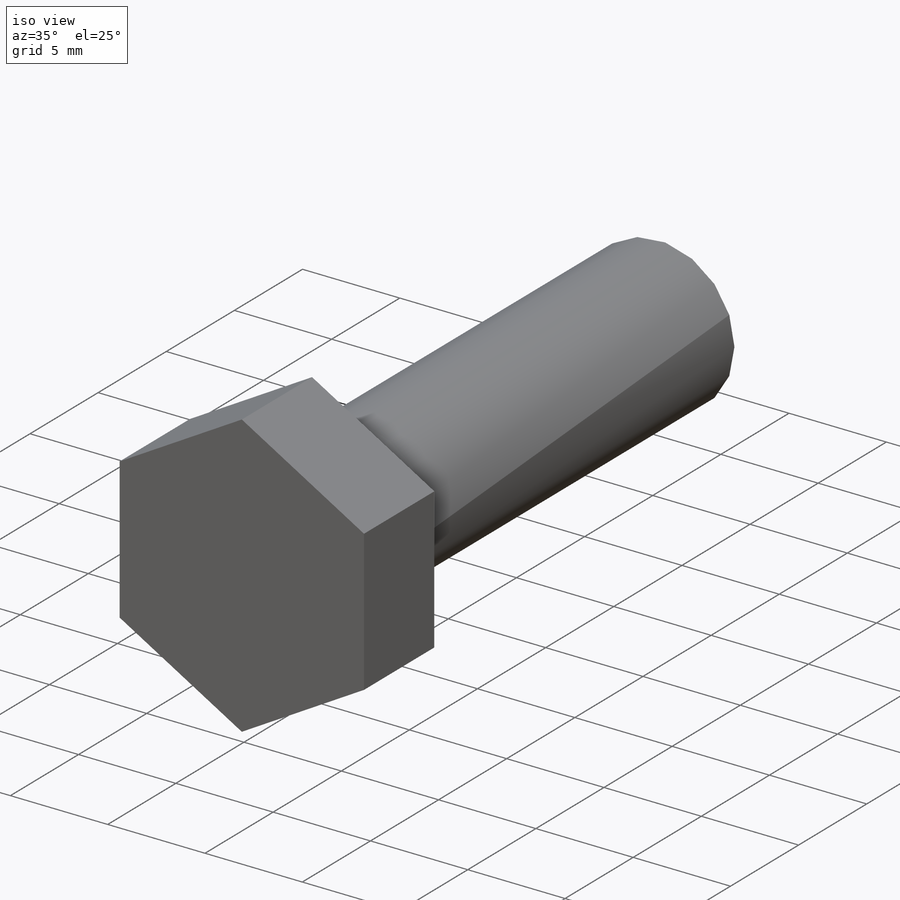
[diagram: iso view]
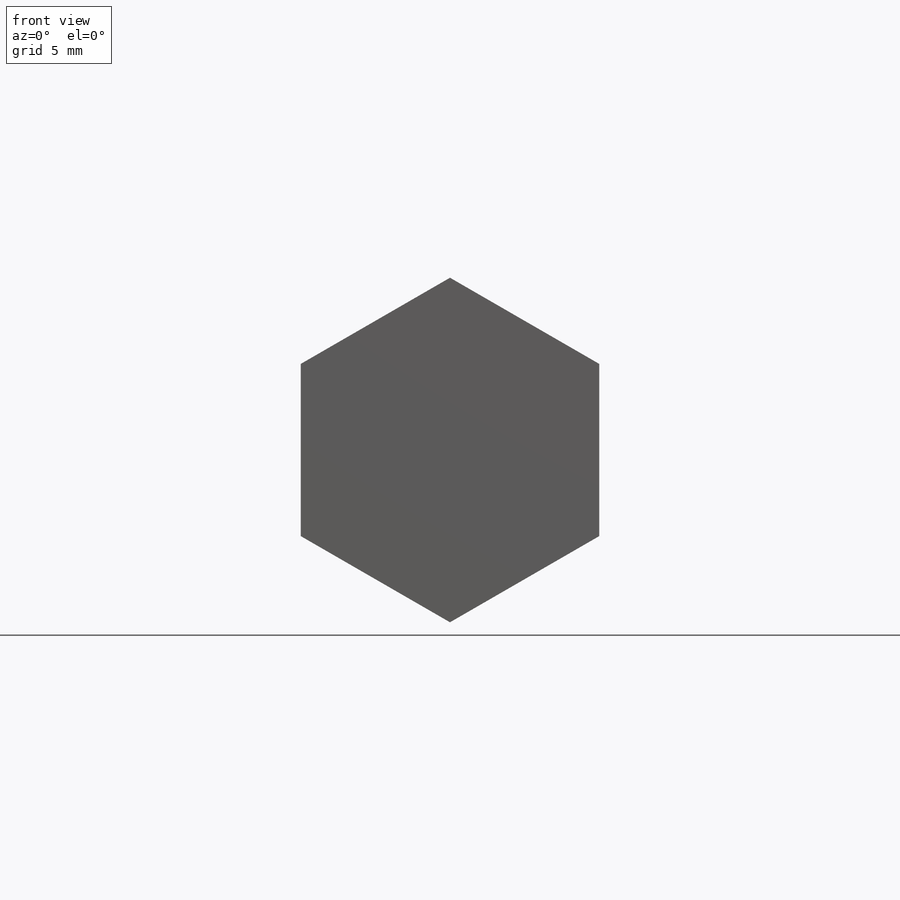
[diagram: front view]
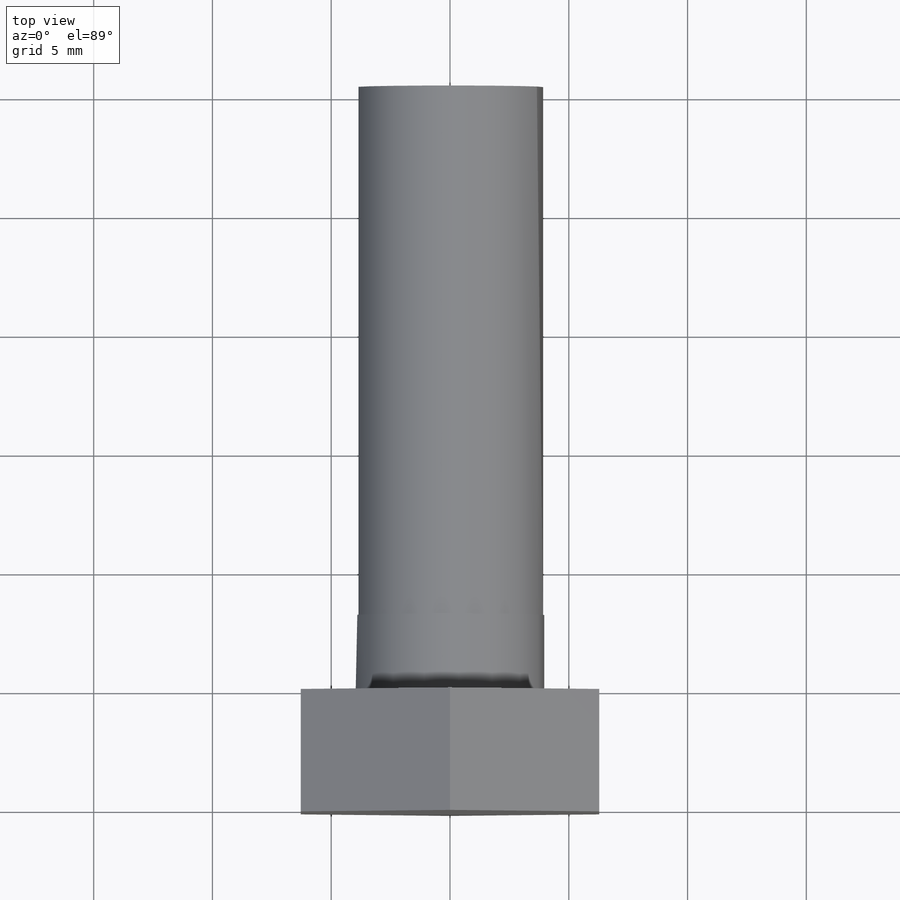
[diagram: top view]
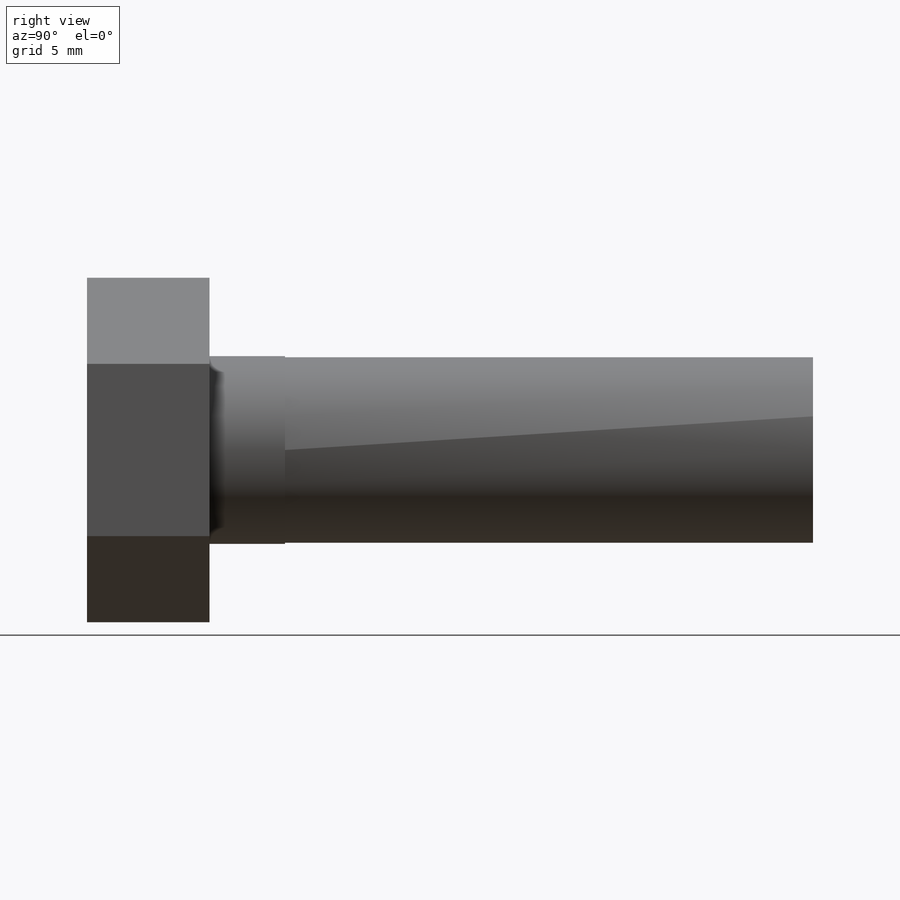
[diagram: right view]
SOLIDWORKS PART (.sldprt)
format: sldprt  version: not decoded by parser v0  size: 267,264 bytes
history: native  units: mm
features: plane x3, sketch x3, extrude x2, fillet x1, cut_revolve x1, thread x1 + 1 further entry (+4 scaffold rows collapsed)
feature tree (16):
  scaffold x4  (default folders/planes/origin — collapsed)
  plane  "Plane1"
  plane  "Plane2"
  plane  "Plane3"
  "Design Table"
  sketch  "Head Sketch"  dims[D1=60.0deg D2=60.0deg Width across flats=12.5603mm]
  extrude  "Head"  Depth=5.1562mm Head height=5.1562mm
  sketch  "Shank Sketch"  dims[Shank diameter=7.9375mm]
  extrude  "Shank"  Depth=25.4mm Shank length=25.4mm
  fillet  "Fillet2"  Radius=0.5mm
  sketch  "Thread End"  dims[c1.D1=1.0mm c1.D2=1.1mm c2.D1=0.05mm c2.Length of thread=22.225mm]
  cut_revolve  "Thread Cut"  [1 undecoded]
  thread  "Cosmetic Thread2"  Diameter=11mm  [1 undecoded]
decode coverage: 7 of 8 modeling features carry decoded parameters; 1 rows unclassified (native names shown)
note: 2 parameter values undecoded
note: suppression state not decoded; provenance and decode notes live in map.json
